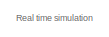
[diagram: root canvas - part 1/3, top left region]
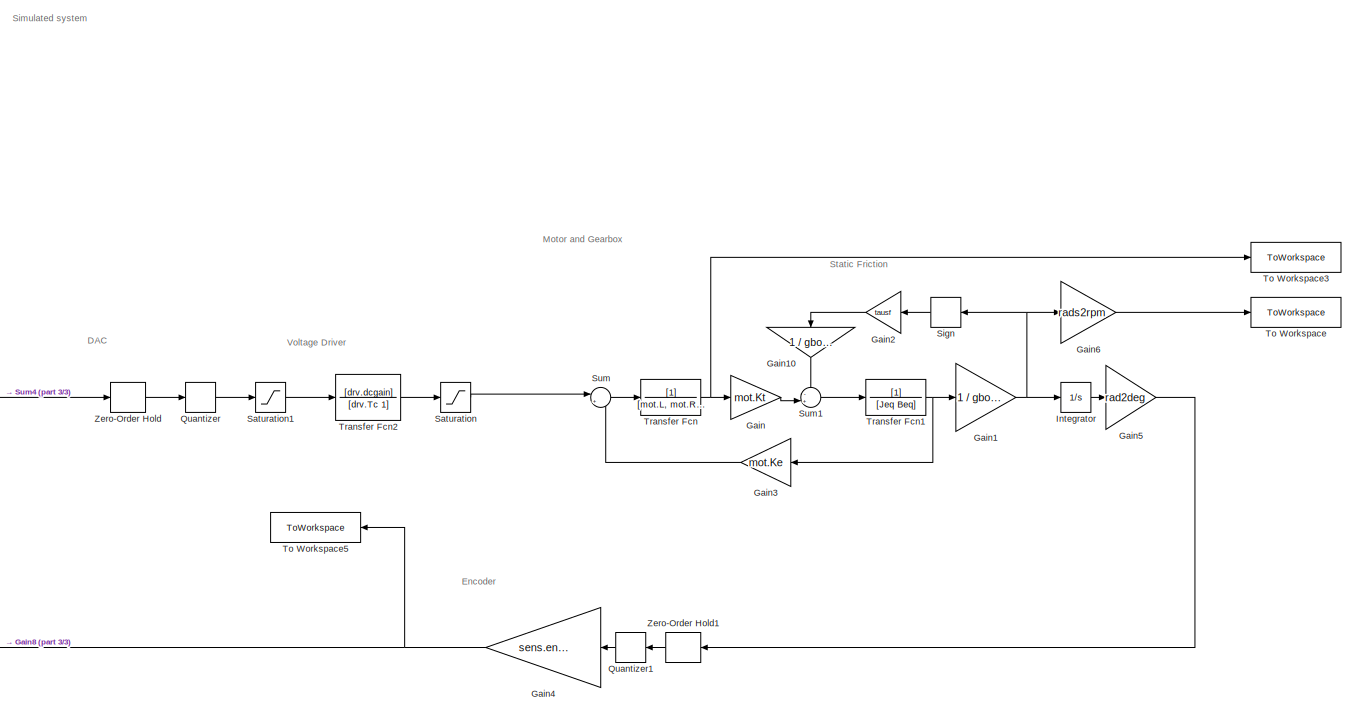
[diagram: root canvas - part 2/3, right side, full height]
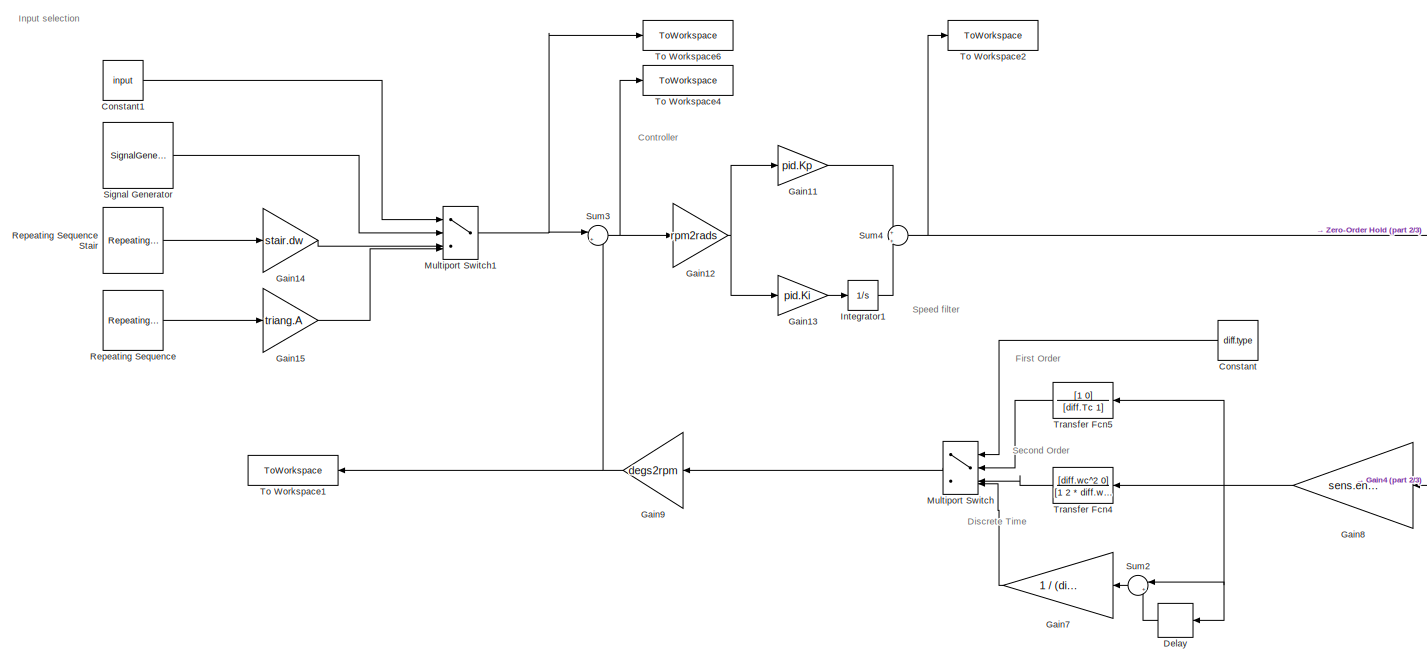
[diagram: root canvas - part 3/3, left side, full height]
MODEL slx_690f37a1af41
KIND model
CONFIG AbsTol = auto
CONFIG EnableMultiTasking = off
CONFIG FixedStep = 0.0001
CONFIG MaxStep = 0.0001
CONFIG MinStep = auto
CONFIG RelTol = 1e-3
CONFIG SampleTimeConstraint = Unconstrained
CONFIG SolverName = ode3
CONFIG StartTime = 0.0
CONFIG StopTime = 20
BLOCK [Constant] Constant
  Value = diff.type
BLOCK [Constant] Constant1
  Value = input
BLOCK [Delay] Delay
  DelayLength = diff.N
  InputPortMap = u0
BLOCK [Gain] Gain
  Gain = mot.Kt
BLOCK [Gain] Gain1
  Gain = 1 / gbox.N
BLOCK [Gain] Gain10
  Gain = 1 / gbox.N
  NameLocation = right
BLOCK [Gain] Gain11
  Gain = pid.Kp
BLOCK [Gain] Gain12
  Gain = rpm2rads
BLOCK [Gain] Gain13
  Gain = pid.Ki
BLOCK [Gain] Gain14
  Gain = stair.dw
BLOCK [Gain] Gain15
  Gain = triang.A
BLOCK [Gain] Gain2
  Gain = tausf
BLOCK [Gain] Gain3
  Gain = mot.Ke
BLOCK [Gain] Gain4
  Gain = sens.enc.deg2pulse
BLOCK [Gain] Gain5
  Gain = rad2deg
BLOCK [Gain] Gain6
  Gain = rads2rpm
BLOCK [Gain] Gain7
  Gain = 1 / (diff.Ts * diff.N)
BLOCK [Gain] Gain8
  Gain = sens.enc.pulse2deg
BLOCK [Gain] Gain9
  Gain = degs2rpm
BLOCK [Integrator] Integrator
BLOCK [Integrator] Integrator1
BLOCK [MultiPortSwitch] Multiport Switch
  InputSameDT = off
  SaturateOnIntegerOverflow = off
BLOCK [MultiPortSwitch] Multiport Switch1
  InputSameDT = off
  SaturateOnIntegerOverflow = off
BLOCK [Quantizer] Quantizer
  QuantizationInterval = dac.q
BLOCK [Quantizer] Quantizer1
  QuantizationInterval = sens.enc.pulse2deg
BLOCK [Reference] Repeating Sequence  REF=simulink/Sources/Repeating
Sequence
  SourceBlock = simulink/Sources/Repeating\nSequence
  SourceType = Repeating table
BLOCK [Reference] Repeating Sequence Stair  REF=simulink/Sources/Repeating
Sequence
Stair
  SourceBlock = simulink/Sources/Repeating\nSequence\nStair
  SourceType = Repeating Sequence Stair
BLOCK [Saturate] Saturation
  LowerLimit = -drv.outmax
  UpperLimit = drv.outmax
BLOCK [Saturate] Saturation1
  LowerLimit = -dac.V
  UpperLimit = dac.V
BLOCK [Signum] Sign
  ZeroCross = off
BLOCK [SignalGenerator] Signal Generator
  Amplitude = step.A
  Frequency = 1 / step.T
  WaveForm = square
BLOCK [Sum] Sum
  Inputs = |+-
BLOCK [Sum] Sum1
  Inputs = -+|
BLOCK [Sum] Sum2
  Inputs = |+-
BLOCK [Sum] Sum3
  Inputs = |+-
BLOCK [Sum] Sum4
  Inputs = +|+
BLOCK [ToWorkspace] To Workspace
  FixptAsFi = on
  MaxDataPoints = inf
  SampleTime = -1
  SaveFormat = Timeseries
  VariableName = wl
BLOCK [ToWorkspace] To Workspace1
  FixptAsFi = on
  MaxDataPoints = inf
  SampleTime = -1
  SaveFormat = Timeseries
  VariableName = w
BLOCK [ToWorkspace] To Workspace2
  FixptAsFi = on
  MaxDataPoints = inf
  SampleTime = -1
  SaveFormat = Timeseries
  VariableName = u
BLOCK [ToWorkspace] To Workspace3
  FixptAsFi = on
  MaxDataPoints = inf
  SampleTime = -1
  SaveFormat = Timeseries
  VariableName = ia
BLOCK [ToWorkspace] To Workspace4
  FixptAsFi = on
  MaxDataPoints = inf
  SampleTime = -1
  SaveFormat = Timeseries
  VariableName = e
BLOCK [ToWorkspace] To Workspace5
  FixptAsFi = on
  MaxDataPoints = inf
  SampleTime = -1
  SaveFormat = Timeseries
  VariableName = th
BLOCK [ToWorkspace] To Workspace6
  FixptAsFi = on
  MaxDataPoints = inf
  SampleTime = -1
  SaveFormat = Timeseries
  VariableName = wl_star
BLOCK [TransferFcn] Transfer Fcn
  Denominator = [mot.L, mot.R + sens.curr.Rs]
BLOCK [TransferFcn] Transfer Fcn1
  Denominator = [Jeq Beq]
BLOCK [TransferFcn] Transfer Fcn2
  Denominator = [drv.Tc 1]
  Numerator = [drv.dcgain]
BLOCK [TransferFcn] Transfer Fcn4
  Denominator = [1 2 * diff.wc * diff.d diff.wc^2]
  Numerator = [diff.wc^2 0]
BLOCK [TransferFcn] Transfer Fcn5
  Denominator = [diff.Tc 1]
  Numerator = [1 0]
BLOCK [ZeroOrderHold] Zero-Order Hold
  SampleTime = dac.Ts
BLOCK [ZeroOrderHold] Zero-Order Hold1
  SampleTime = dac.Ts
ANNOTATION (root): Controller
ANNOTATION (root): DAC
ANNOTATION (root): Discrete Time
ANNOTATION (root): Encoder
ANNOTATION (root): First Order
ANNOTATION (root): Input selection
ANNOTATION (root): Motor and Gearbox
ANNOTATION (root): Real time simulation
ANNOTATION (root): Second Order
ANNOTATION (root): Simulated system
ANNOTATION (root): Speed filter
ANNOTATION (root): Static Friction
ANNOTATION (root): Voltage Driver
LINE Constant1:1 -> Multiport Switch1:1
LINE Constant:1 -> Multiport Switch:1
LINE Delay:1 -> Sum2:2
LINE Gain10:1 -> Sum1:1
LINE Gain11:1 -> Sum4:1
NET Gain12:1 -> Gain11:1, Gain13:1
LINE Gain13:1 -> Integrator1:1
LINE Gain14:1 -> Multiport Switch1:3
LINE Gain15:1 -> Multiport Switch1:4
NET Gain1:1 -> Gain6:1, Integrator:1, Sign:1
LINE Gain2:1 -> Gain10:1
LINE Gain3:1 -> Sum:2
NET Gain4:1 -> Gain8:1, To Workspace5:1
LINE Gain5:1 -> Zero-Order Hold1:1
LINE Gain6:1 -> To Workspace:1
LINE Gain7:1 -> Multiport Switch:4
NET Gain8:1 -> Delay:1, Sum2:1, Transfer Fcn4:1, Transfer Fcn5:1
NET Gain9:1 -> Sum3:2, To Workspace1:1
LINE Gain:1 -> Sum1:2
LINE Integrator1:1 -> Sum4:2
LINE Integrator:1 -> Gain5:1
NET Multiport Switch1:1 -> Sum3:1, To Workspace6:1
LINE Multiport Switch:1 -> Gain9:1
LINE Quantizer1:1 -> Gain4:1
LINE Quantizer:1 -> Saturation1:1
LINE Repeating Sequence Stair:1 -> Gain14:1
LINE Repeating Sequence:1 -> Gain15:1
LINE Saturation1:1 -> Transfer Fcn2:1
LINE Saturation:1 -> Sum:1
LINE Sign:1 -> Gain2:1
LINE Signal Generator:1 -> Multiport Switch1:2
LINE Sum1:1 -> Transfer Fcn1:1
LINE Sum2:1 -> Gain7:1
NET Sum3:1 -> Gain12:1, To Workspace4:1
NET Sum4:1 -> To Workspace2:1, Zero-Order Hold:1
LINE Sum:1 -> Transfer Fcn:1
NET Transfer Fcn1:1 -> Gain1:1, Gain3:1
LINE Transfer Fcn2:1 -> Saturation:1
LINE Transfer Fcn4:1 -> Multiport Switch:3
LINE Transfer Fcn5:1 -> Multiport Switch:2
NET Transfer Fcn:1 -> Gain:1, To Workspace3:1
LINE Zero-Order Hold1:1 -> Quantizer1:1
LINE Zero-Order Hold:1 -> Quantizer:1
note: NET lines group one-source signal fan-out (src -> all destinations, sorted); 1:1 wires keep LINE
